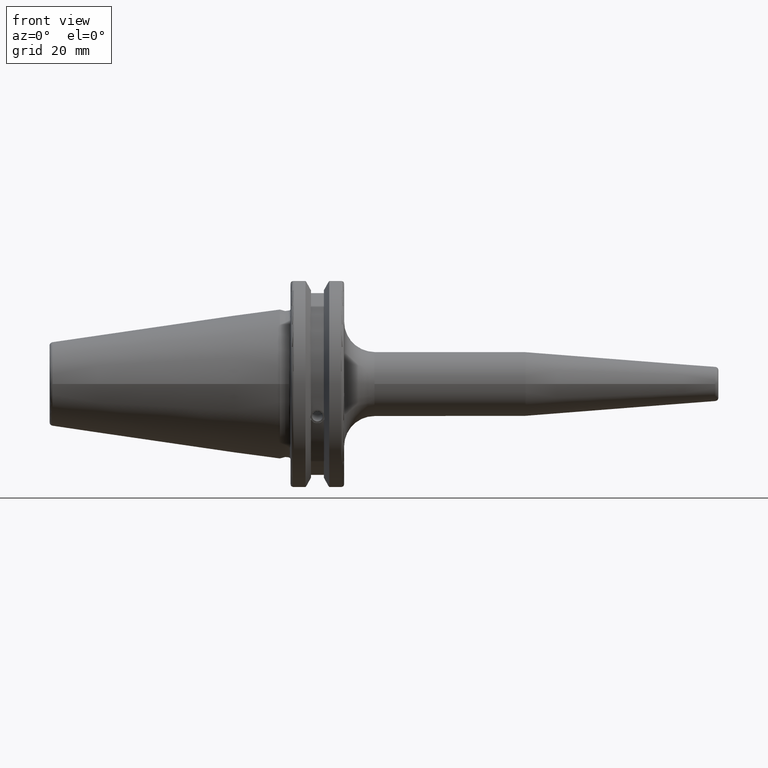
[diagram: clean part render]
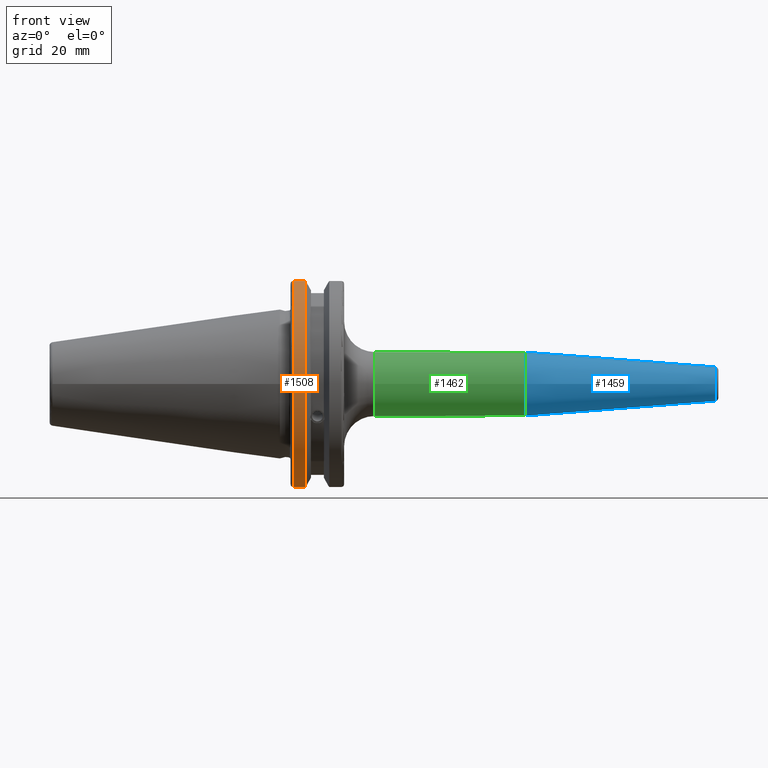
[diagram: same view with three faces highlighted in distinct colors, each labeled with its STEP entity id]
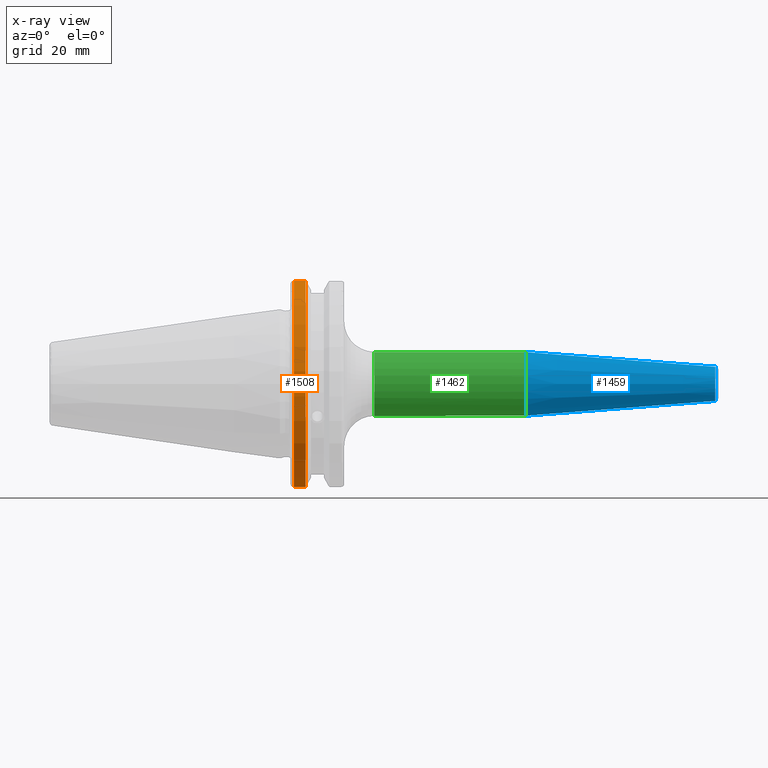
[diagram: x-ray of the same camera — body ghosted, the three highlighted faces saturated]
A machine part, front view with three faces highlighted in distinct colors.
The next image is the same camera in x-ray (body ghosted, the three faces saturated) — at least one of them is partly hidden behind the body in this view.
Their STEP definitions:

[orange] entity #1508 — the highlighted cylindrical surface (partial cylindrical patch) has radius 31.75 mm, axis along (1, 0, 0).
#99=CYLINDRICAL_SURFACE('',#1686,31.75);
#227=LINE('',#2823,#321);
#228=LINE('',#2829,#322);
#321=VECTOR('',#2053,10.);
#322=VECTOR('',#2056,10.);
#408=FACE_OUTER_BOUND('',#504,.T.);
#504=EDGE_LOOP('',(#1293,#1294,#1295,#1296));
#593=CIRCLE('',#1684,31.75);
#594=CIRCLE('',#1687,31.75);
#741=VERTEX_POINT('',#2802);
#742=VERTEX_POINT('',#2811);
#743=VERTEX_POINT('',#2822);
#744=VERTEX_POINT('',#2828);
#941=EDGE_CURVE('',#741,#742,#593,.T.);
#943=EDGE_CURVE('',#742,#743,#227,.T.);
#945=EDGE_CURVE('',#744,#741,#228,.T.);
#946=EDGE_CURVE('',#743,#744,#594,.T.);
#1293=ORIENTED_EDGE('',*,*,#941,.F.);
#1294=ORIENTED_EDGE('',*,*,#945,.F.);
#1295=ORIENTED_EDGE('',*,*,#946,.F.);
#1296=ORIENTED_EDGE('',*,*,#943,.F.);
#1508=ADVANCED_FACE('',(#408),#99,.T.);
#1684=AXIS2_PLACEMENT_3D('',#2812,#2049,#2050);
#1686=AXIS2_PLACEMENT_3D('',#2827,#2054,#2055);
#1687=AXIS2_PLACEMENT_3D('',#2830,#2057,#2058);
#2049=DIRECTION('center_axis',(-1.,0.,0.));
#2050=DIRECTION('ref_axis',(0.,-1.,1.60812264967664E-16));
#2053=DIRECTION('',(1.,0.,0.));
#2054=DIRECTION('center_axis',(1.,0.,0.));
#2055=DIRECTION('ref_axis',(0.,-1.,1.22464679914735E-16));
#2056=DIRECTION('',(-1.,0.,0.));
#2057=DIRECTION('center_axis',(1.,0.,0.));
#2058=DIRECTION('ref_axis',(0.,0.,-1.));
#2802=CARTESIAN_POINT('',(4.175,-8.67204822802685,-30.5427254764662));
#2811=CARTESIAN_POINT('',(4.175,-8.67204822802685,30.5427254764662));
#2812=CARTESIAN_POINT('Origin',(4.175,0.,0.));
#2822=CARTESIAN_POINT('',(7.60793323092436,-8.67204822802685,30.5427254764662));
#2823=CARTESIAN_POINT('',(5.39146661546218,-8.67204822802685,30.5427254764662));
#2827=CARTESIAN_POINT('Origin',(5.39146661546218,0.,0.));
#2828=CARTESIAN_POINT('',(7.60793323092436,-8.67204822802685,-30.5427254764662));
#2829=CARTESIAN_POINT('',(5.39146661546218,-8.67204822802685,-30.5427254764662));
#2830=CARTESIAN_POINT('Origin',(7.60793323092436,0.,0.));

[blue] entity #1459 — the highlighted conical surface has half-angle 4.5 deg.
#156=LINE('',#2195,#250);
#250=VECTOR('',#1754,7.25);
#344=CONICAL_SURFACE('',#1571,7.25,0.0785398163397448);
#359=FACE_OUTER_BOUND('',#444,.T.);
#444=EDGE_LOOP('',(#997,#998,#999,#1000,#1001));
#544=CIRCLE('',#1569,5.07252684207492);
#545=CIRCLE('',#1570,5.07252684207492);
#546=CIRCLE('',#1572,9.5);
#614=VERTEX_POINT('',#2188);
#615=VERTEX_POINT('',#2190);
#616=VERTEX_POINT('',#2194);
#765=EDGE_CURVE('',#614,#615,#544,.T.);
#766=EDGE_CURVE('',#615,#614,#545,.T.);
#767=EDGE_CURVE('',#615,#616,#156,.T.);
#768=EDGE_CURVE('',#616,#616,#546,.T.);
#997=ORIENTED_EDGE('',*,*,#766,.F.);
#998=ORIENTED_EDGE('',*,*,#767,.T.);
#999=ORIENTED_EDGE('',*,*,#768,.T.);
#1000=ORIENTED_EDGE('',*,*,#767,.F.);
#1001=ORIENTED_EDGE('',*,*,#765,.F.);
#1459=ADVANCED_FACE('',(#359),#344,.T.);
#1569=AXIS2_PLACEMENT_3D('',#2191,#1748,#1749);
#1570=AXIS2_PLACEMENT_3D('',#2192,#1750,#1751);
#1571=AXIS2_PLACEMENT_3D('',#2193,#1752,#1753);
#1572=AXIS2_PLACEMENT_3D('',#2196,#1755,#1756);
#1748=DIRECTION('center_axis',(1.,0.,0.));
#1749=DIRECTION('ref_axis',(0.,-1.,3.06161699786838E-17));
#1750=DIRECTION('center_axis',(1.,0.,0.));
#1751=DIRECTION('ref_axis',(0.,-1.,3.06161699786838E-17));
#1752=DIRECTION('center_axis',(-1.,0.,0.));
#1753=DIRECTION('ref_axis',(0.,1.,0.));
#1754=DIRECTION('',(-0.996917333733128,-0.0784590957278449,-9.6084680447101E-18));
#1755=DIRECTION('center_axis',(1.,0.,0.));
#1756=DIRECTION('ref_axis',(0.,0.,-1.));
#2188=CARTESIAN_POINT('',(129.078459095728,-6.21205376073608E-16,5.07252684207492));
#2190=CARTESIAN_POINT('',(129.078459095728,-5.07252684207492,-6.21205376073608E-16));
#2191=CARTESIAN_POINT('Origin',(129.078459095728,0.,-7.7650672009201E-16));
#2192=CARTESIAN_POINT('Origin',(129.078459095728,0.,-7.7650672009201E-16));
#2193=CARTESIAN_POINT('Origin',(101.411039343607,0.,0.));
#2194=CARTESIAN_POINT('',(72.8220786872138,-9.5,-1.16341445918999E-15));
#2195=CARTESIAN_POINT('',(101.411039343607,-7.25,-8.87868929381831E-16));
#2196=CARTESIAN_POINT('Origin',(72.8220786872138,0.,0.));

[green] entity #1462 — the highlighted cylindrical surface (bore or boss wall) has radius 9.5 mm, axis along (1, 0, 0).
#79=CYLINDRICAL_SURFACE('',#1580,9.5);
#157=LINE('',#2209,#251);
#251=VECTOR('',#1773,9.5);
#362=FACE_OUTER_BOUND('',#448,.T.);
#448=EDGE_LOOP('',(#1009,#1010,#1011,#1012,#1013));
#546=CIRCLE('',#1572,9.5);
#548=CIRCLE('',#1576,9.5);
#551=CIRCLE('',#1579,9.5);
#616=VERTEX_POINT('',#2194);
#618=VERTEX_POINT('',#2201);
#619=VERTEX_POINT('',#2202);
#768=EDGE_CURVE('',#616,#616,#546,.T.);
#770=EDGE_CURVE('',#618,#619,#548,.T.);
#773=EDGE_CURVE('',#619,#618,#551,.T.);
#774=EDGE_CURVE('',#616,#618,#157,.T.);
#1009=ORIENTED_EDGE('',*,*,#768,.F.);
#1010=ORIENTED_EDGE('',*,*,#774,.T.);
#1011=ORIENTED_EDGE('',*,*,#773,.F.);
#1012=ORIENTED_EDGE('',*,*,#770,.F.);
#1013=ORIENTED_EDGE('',*,*,#774,.F.);
#1462=ADVANCED_FACE('',(#362),#79,.T.);
#1572=AXIS2_PLACEMENT_3D('',#2196,#1755,#1756);
#1576=AXIS2_PLACEMENT_3D('',#2203,#1763,#1764);
#1579=AXIS2_PLACEMENT_3D('',#2207,#1769,#1770);
#1580=AXIS2_PLACEMENT_3D('',#2208,#1771,#1772);
#1755=DIRECTION('center_axis',(1.,0.,0.));
#1756=DIRECTION('ref_axis',(0.,0.,-1.));
#1763=DIRECTION('center_axis',(-1.,0.,0.));
#1764=DIRECTION('ref_axis',(0.,-1.,-1.22464679914735E-16));
#1769=DIRECTION('center_axis',(-1.,0.,0.));
#1770=DIRECTION('ref_axis',(0.,-1.,-1.22464679914735E-16));
#1771=DIRECTION('center_axis',(1.,0.,0.));
#1772=DIRECTION('ref_axis',(0.,1.,0.));
#1773=DIRECTION('',(-1.,0.,0.));
#2194=CARTESIAN_POINT('',(72.8220786872138,-9.5,-1.16341445918999E-15));
#2196=CARTESIAN_POINT('Origin',(72.8220786872138,0.,0.));
#2201=CARTESIAN_POINT('',(28.05,-9.5,-1.16341445918999E-15));
#2202=CARTESIAN_POINT('',(28.05,-1.16341445918999E-15,-9.5));
#2203=CARTESIAN_POINT('Origin',(28.05,0.,0.));
#2207=CARTESIAN_POINT('Origin',(28.05,0.,0.));
#2208=CARTESIAN_POINT('Origin',(45.9360393436069,0.,0.));
#2209=CARTESIAN_POINT('',(45.9360393436069,-9.5,-1.16341445918999E-15));